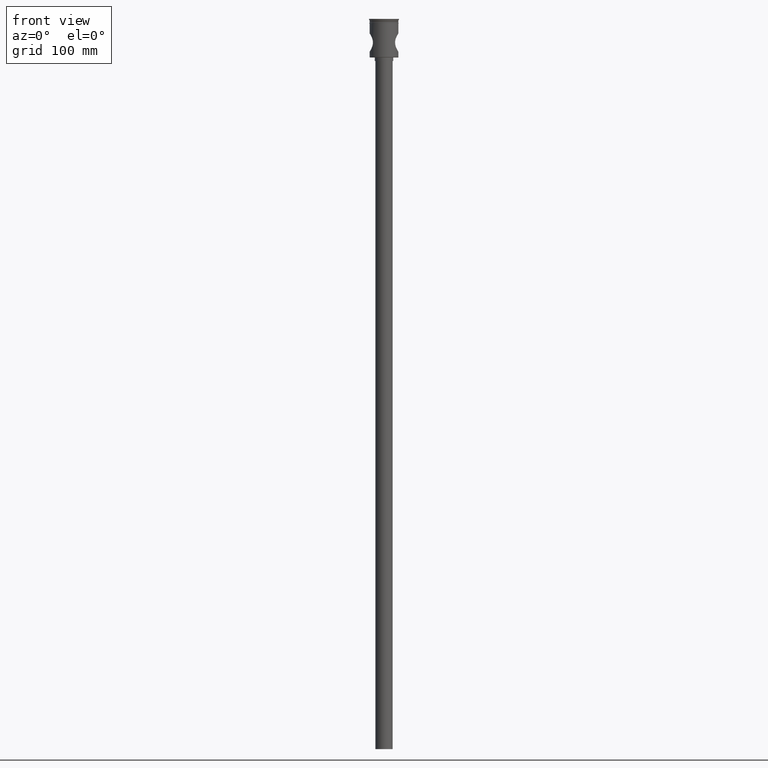
[diagram: clean part render]
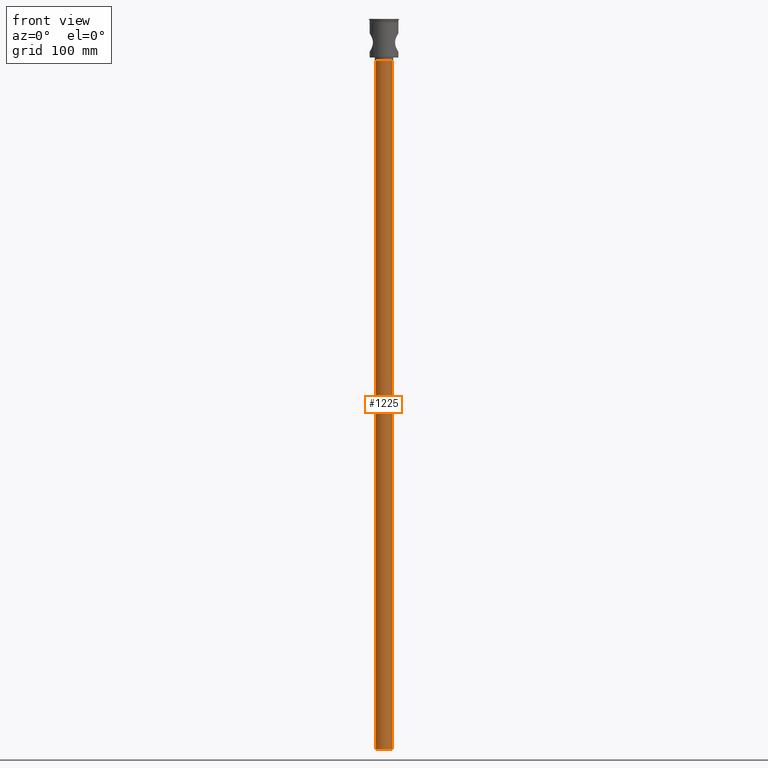
[diagram: same view with one face highlighted and labeled with its STEP entity id]
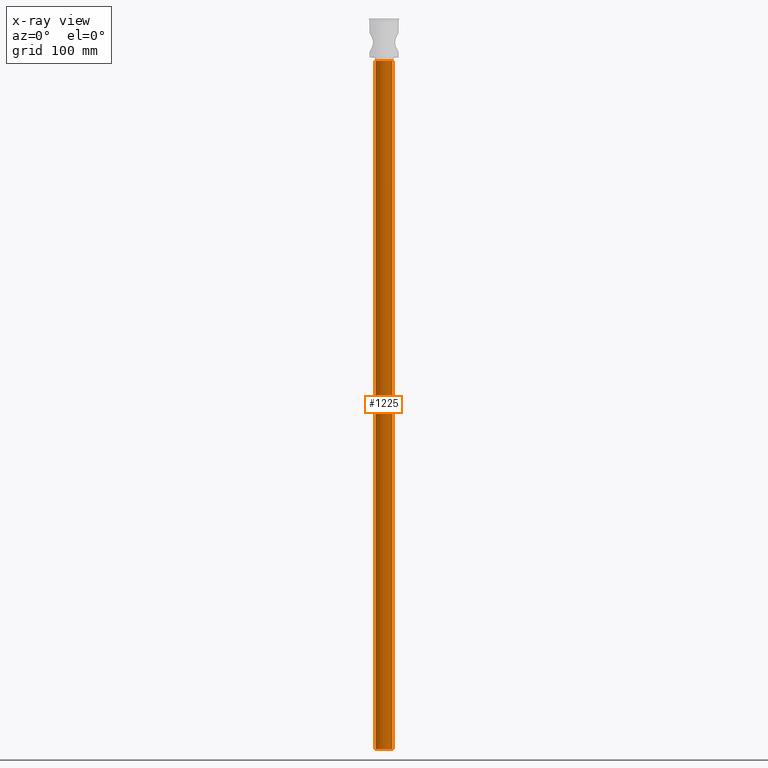
[diagram: x-ray of the same camera — body ghosted, the highlighted face saturated]
A machine part, front view. The second image highlights one B-rep face of the part: STEP entity #1225.
The next image is the same camera in x-ray: the body ghosted, the highlighted face saturated — about 0% of this face is hidden behind the body in this view.
In plain terms, the highlighted cylindrical surface (edge-blend (fillet) strip) has radius 7.5 mm, axis along (-0, -0, 1).
Its self-contained STEP definition (entity closure, byte-faithful):
#5 = CARTESIAN_POINT ( 'NONE',  ( 7.500000000000000000, 0.000000000000000000, -36.50000000000000711 ) ) ;
#62 = CIRCLE ( 'NONE', #289, 7.500000000000000000 ) ;
#96 = DIRECTION ( 'NONE',  ( 1.000000000000000000, 0.000000000000000000, 0.000000000000000000 ) ) ;
#135 = CARTESIAN_POINT ( 'NONE',  ( -7.500000000000000000, 9.184850993605147944E-16, -633.5000000000000000 ) ) ;
#207 = CIRCLE ( 'NONE', #696, 7.500000000000000000 ) ;
#242 = ORIENTED_EDGE ( 'NONE', *, *, #847, .F. ) ;
#282 = CARTESIAN_POINT ( 'NONE',  ( 0.000000000000000000, 0.000000000000000000, -633.5000000000000000 ) ) ;
#289 = AXIS2_PLACEMENT_3D ( 'NONE', #439, #324, #798 ) ;
#292 = FACE_OUTER_BOUND ( 'NONE', #759, .T. ) ;
#324 = DIRECTION ( 'NONE',  ( 0.000000000000000000, 0.000000000000000000, -1.000000000000000000 ) ) ;
#332 = VECTOR ( 'NONE', #1009, 1000.000000000000000 ) ;
#354 = EDGE_CURVE ( 'NONE', #550, #709, #207, .T. ) ;
#377 = ORIENTED_EDGE ( 'NONE', *, *, #980, .T. ) ;
#379 = ORIENTED_EDGE ( 'NONE', *, *, #418, .T. ) ;
#415 = AXIS2_PLACEMENT_3D ( 'NONE', #282, #915, #96 ) ;
#418 = EDGE_CURVE ( 'NONE', #711, #722, #62, .T. ) ;
#439 = CARTESIAN_POINT ( 'NONE',  ( 0.000000000000000000, 0.000000000000000000, -36.50000000000000711 ) ) ;
#514 = DIRECTION ( 'NONE',  ( -1.000000000000000000, 0.000000000000000000, 0.000000000000000000 ) ) ;
#523 = CARTESIAN_POINT ( 'NONE',  ( 7.500000000000000000, 0.000000000000000000, -633.5000000000000000 ) ) ;
#550 = VERTEX_POINT ( 'NONE', #1159 ) ;
#696 = AXIS2_PLACEMENT_3D ( 'NONE', #1122, #1349, #514 ) ;
#709 = VERTEX_POINT ( 'NONE', #135 ) ;
#711 = VERTEX_POINT ( 'NONE', #5 ) ;
#722 = VERTEX_POINT ( 'NONE', #1287 ) ;
#734 = VECTOR ( 'NONE', #1157, 1000.000000000000000 ) ;
#759 = EDGE_LOOP ( 'NONE', ( #242, #1086, #377, #379 ) ) ;
#798 = DIRECTION ( 'NONE',  ( -1.000000000000000000, 0.000000000000000000, 0.000000000000000000 ) ) ;
#847 = EDGE_CURVE ( 'NONE', #709, #722, #1161, .T. ) ;
#875 = LINE ( 'NONE', #523, #332 ) ;
#915 = DIRECTION ( 'NONE',  ( -0.000000000000000000, -0.000000000000000000, 1.000000000000000000 ) ) ;
#934 = CARTESIAN_POINT ( 'NONE',  ( -7.500000000000000000, 9.184850993605147944E-16, -633.5000000000000000 ) ) ;
#980 = EDGE_CURVE ( 'NONE', #550, #711, #875, .T. ) ;
#1009 = DIRECTION ( 'NONE',  ( -0.000000000000000000, -0.000000000000000000, 1.000000000000000000 ) ) ;
#1086 = ORIENTED_EDGE ( 'NONE', *, *, #354, .F. ) ;
#1122 = CARTESIAN_POINT ( 'NONE',  ( 0.000000000000000000, 0.000000000000000000, -633.5000000000000000 ) ) ;
#1157 = DIRECTION ( 'NONE',  ( -0.000000000000000000, -0.000000000000000000, 1.000000000000000000 ) ) ;
#1159 = CARTESIAN_POINT ( 'NONE',  ( 7.500000000000000000, 0.000000000000000000, -633.5000000000000000 ) ) ;
#1161 = LINE ( 'NONE', #934, #734 ) ;
#1225 = ADVANCED_FACE ( 'NONE', ( #292 ), #1478, .T. ) ;
#1287 = CARTESIAN_POINT ( 'NONE',  ( -7.500000000000000000, 9.184850993605147944E-16, -36.50000000000000711 ) ) ;
#1349 = DIRECTION ( 'NONE',  ( 0.000000000000000000, 0.000000000000000000, -1.000000000000000000 ) ) ;
#1478 = CYLINDRICAL_SURFACE ( 'NONE', #415, 7.500000000000000000 ) ;